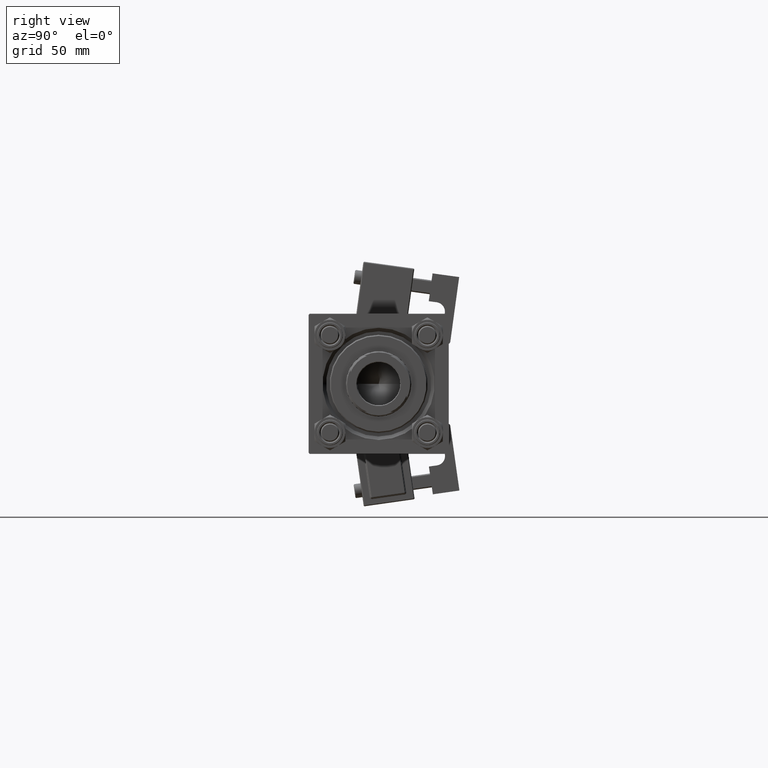
[diagram: clean part render]
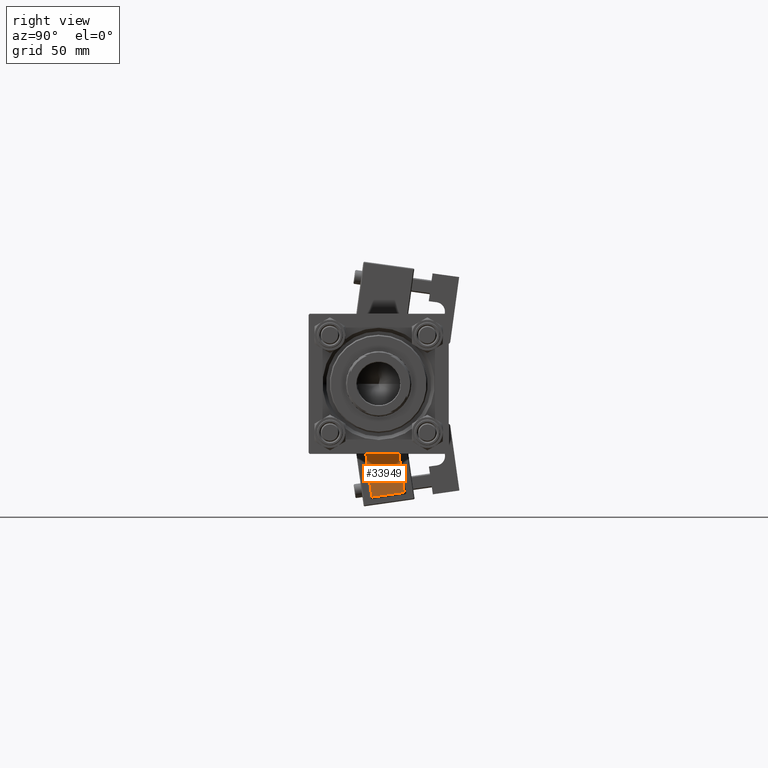
[diagram: same view with one face highlighted and labeled with its STEP entity id]
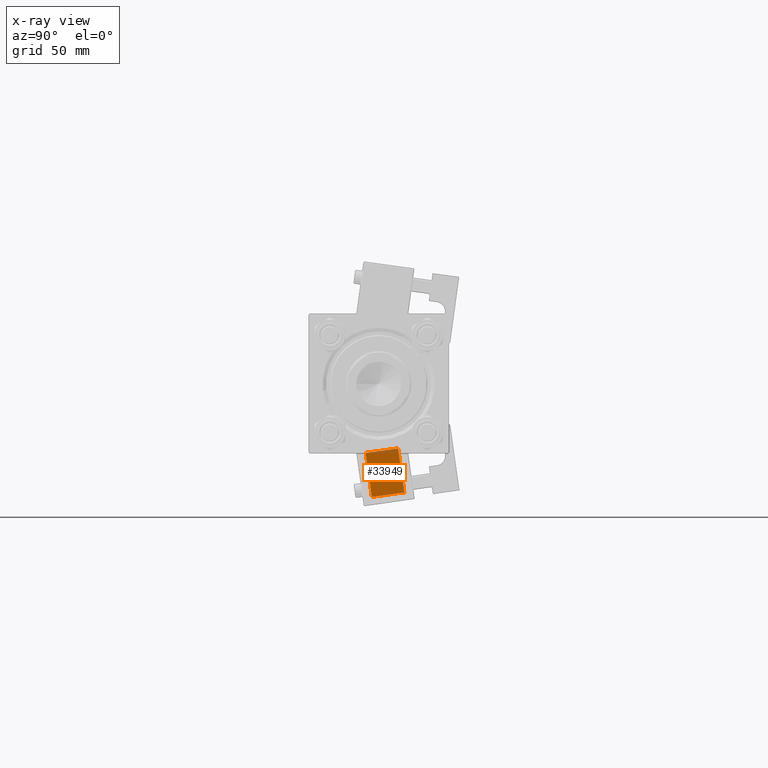
[diagram: x-ray of the same camera — body ghosted, the highlighted face saturated]
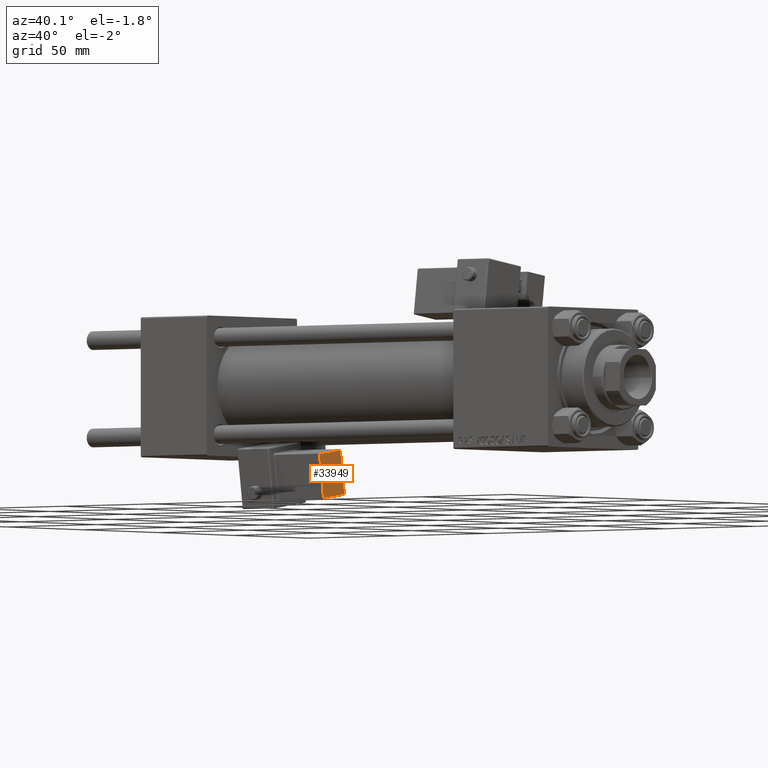
[diagram: same view with one face highlighted and labeled with its STEP entity id]
A machine part, right view. The second image highlights one B-rep face of the part: STEP entity #33949.
The next image is the same camera in x-ray: the body ghosted, the highlighted face saturated — about 7% of this face is hidden behind the body in this view.
A second angle (auxiliary view) of the same face is appended — the face is thin or edge-on in the first view.
In plain terms, the highlighted planar face has unit normal (1, -0, 0).
Its self-contained STEP definition (entity closure, byte-faithful):
#413 = VERTEX_POINT ( 'NONE', #39609 ) ;
#3728 = DIRECTION ( 'NONE',  ( -5.473822126268816683E-48, 1.000000000000000000, 1.156482317317871725E-16 ) ) ;
#4133 = VERTEX_POINT ( 'NONE', #45517 ) ;
#4313 = PLANE ( 'NONE',  #11420 ) ;
#8435 = VECTOR ( 'NONE', #3728, 1000.000000000000000 ) ;
#9816 = LINE ( 'NONE', #38007, #21512 ) ;
#11420 = AXIS2_PLACEMENT_3D ( 'NONE', #23559, #16426, #44347 ) ;
#12285 = LINE ( 'NONE', #40717, #22957 ) ;
#12941 = CARTESIAN_POINT ( 'NONE',  ( 33.75000000000000000, -17.74999999999999645, 2.500000000000009770 ) ) ;
#14827 = LINE ( 'NONE', #15082, #47590 ) ;
#15082 = CARTESIAN_POINT ( 'NONE',  ( 33.74999999999999289, -32.24999999999999289, 21.50000000000000000 ) ) ;
#16426 = DIRECTION ( 'NONE',  ( 1.000000000000000000, -2.006177025403371319E-32, 1.734723475976807587E-16 ) ) ;
#18849 = EDGE_CURVE ( 'NONE', #50106, #48981, #40325, .T. ) ;
#18975 = ORIENTED_EDGE ( 'NONE', *, *, #34562, .T. ) ;
#19694 = ORIENTED_EDGE ( 'NONE', *, *, #27762, .T. ) ;
#21512 = VECTOR ( 'NONE', #22457, 1000.000000000000000 ) ;
#22457 = DIRECTION ( 'NONE',  ( -1.734723475976807587E-16, 0.000000000000000000, 1.000000000000000000 ) ) ;
#22957 = VECTOR ( 'NONE', #24419, 1000.000000000000000 ) ;
#23559 = CARTESIAN_POINT ( 'NONE',  ( 33.75000000000000000, -1.755404897227950732E-31, 4.853889726050491084E-15 ) ) ;
#24419 = DIRECTION ( 'NONE',  ( 1.734723475976807587E-16, 0.000000000000000000, -1.000000000000000000 ) ) ;
#26005 = ORIENTED_EDGE ( 'NONE', *, *, #18849, .T. ) ;
#26965 = DIRECTION ( 'NONE',  ( 6.018531076210116420E-32, -1.000000000000000000, -4.625929269271486900E-16 ) ) ;
#27514 = FACE_OUTER_BOUND ( 'NONE', #35242, .T. ) ;
#27762 = EDGE_CURVE ( 'NONE', #4133, #50106, #12285, .T. ) ;
#33949 = ADVANCED_FACE ( 'NONE', ( #27514 ), #4313, .T. ) ;
#34073 = EDGE_CURVE ( 'NONE', #48981, #413, #9816, .T. ) ;
#34562 = EDGE_CURVE ( 'NONE', #413, #4133, #14827, .T. ) ;
#35242 = EDGE_LOOP ( 'NONE', ( #18975, #19694, #26005, #40293 ) ) ;
#38007 = CARTESIAN_POINT ( 'NONE',  ( 33.74999999999999289, -17.74999999999999645, 22.00000000000001066 ) ) ;
#39609 = CARTESIAN_POINT ( 'NONE',  ( 33.74999999999999289, -17.74999999999999645, 21.50000000000000711 ) ) ;
#40293 = ORIENTED_EDGE ( 'NONE', *, *, #34073, .T. ) ;
#40325 = LINE ( 'NONE', #51652, #8435 ) ;
#40717 = CARTESIAN_POINT ( 'NONE',  ( 33.75000000000000000, -31.74999999999999289, 2.000000000000008438 ) ) ;
#44347 = DIRECTION ( 'NONE',  ( 1.734723475976807587E-16, 0.000000000000000000, -1.000000000000000000 ) ) ;
#45517 = CARTESIAN_POINT ( 'NONE',  ( 33.74999999999999289, -31.74999999999999289, 21.50000000000000000 ) ) ;
#47590 = VECTOR ( 'NONE', #26965, 1000.000000000000000 ) ;
#48981 = VERTEX_POINT ( 'NONE', #12941 ) ;
#50106 = VERTEX_POINT ( 'NONE', #51622 ) ;
#51622 = CARTESIAN_POINT ( 'NONE',  ( 33.75000000000000000, -31.74999999999999289, 2.500000000000007994 ) ) ;
#51652 = CARTESIAN_POINT ( 'NONE',  ( 33.75000000000000000, -17.24999999999999289, 2.500000000000009770 ) ) ;